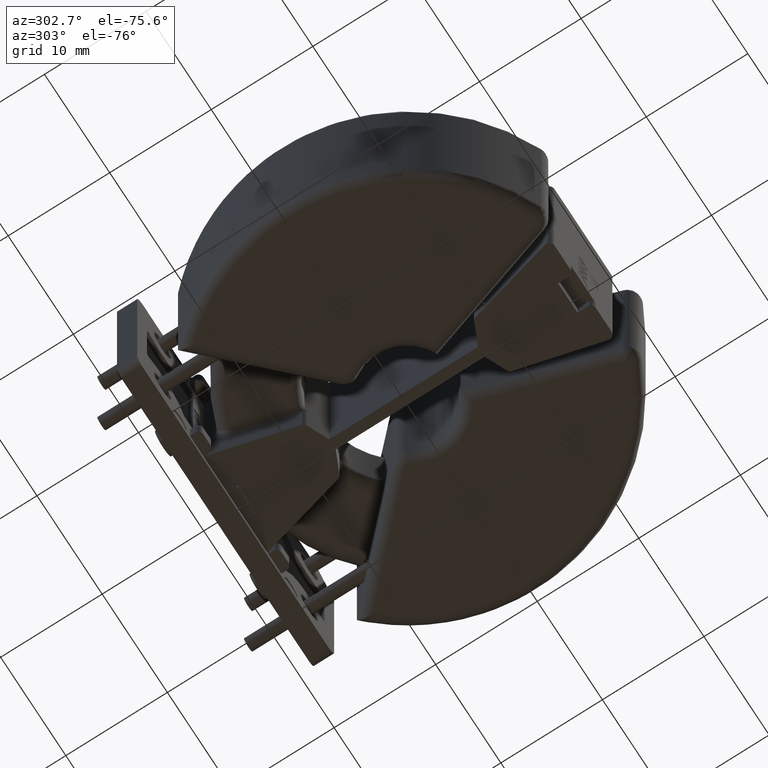
[diagram: clean part render]
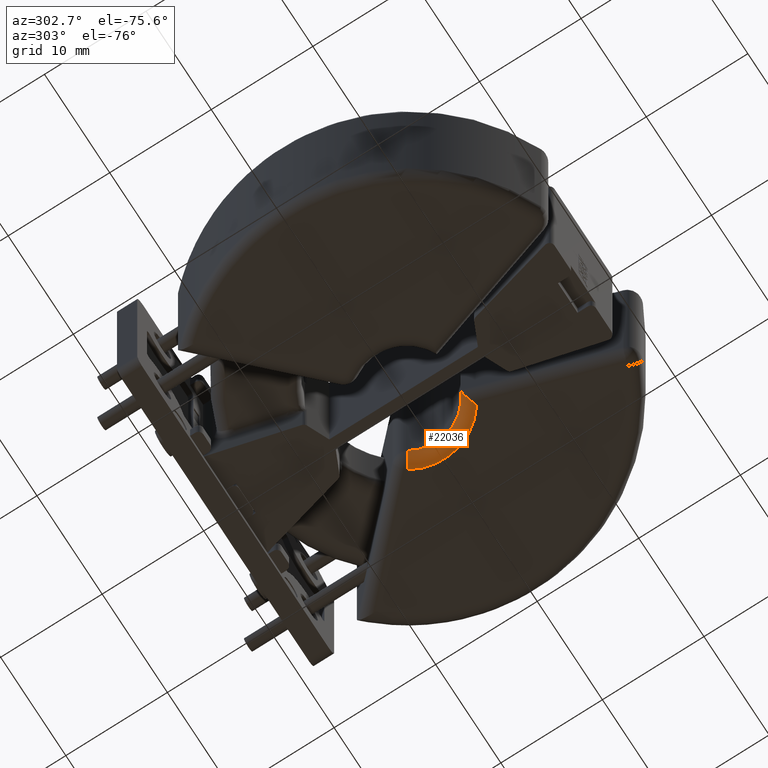
[diagram: same view with one face highlighted and labeled with its STEP entity id]
A machine part, auxiliary view. The second image highlights one B-rep face of the part: STEP entity #22036.
In plain terms, the highlighted toroidal blend (fillet) surface has major radius 5.8 mm and minor (blend) radius 1.3 mm.
Its self-contained STEP definition (entity closure, byte-faithful):
#465 = ORIENTED_EDGE ( 'NONE', *, *, #17610, .F. ) ;
#1591 = CARTESIAN_POINT ( 'NONE',  ( 1.826306909887242647, -4.112736688738793056, -4.275000000000008349 ) ) ;
#1743 = CARTESIAN_POINT ( 'NONE',  ( 3.010516339354601723, -4.588121149716618774, -5.546389730177627264 ) ) ;
#1808 = EDGE_CURVE ( 'NONE', #18888, #19305, #17405, .T. ) ;
#1999 = CARTESIAN_POINT ( 'NONE',  ( 2.023382299663143868, -4.199878147416290730, -4.909567398809551619 ) ) ;
#2593 = ORIENTED_EDGE ( 'NONE', *, *, #5494, .F. ) ;
#2964 = AXIS2_PLACEMENT_3D ( 'NONE', #25417, #6483, #14897 ) ;
#3181 = ORIENTED_EDGE ( 'NONE', *, *, #1808, .F. ) ;
#4059 = CARTESIAN_POINT ( 'NONE',  ( 1.839774589975620600, -4.118834469148009880, -4.468960211141700611 ) ) ;
#5494 = EDGE_CURVE ( 'NONE', #24150, #18888, #6924, .T. ) ;
#5531 = AXIS2_PLACEMENT_3D ( 'NONE', #8751, #21690, #14793 ) ;
#6258 = CARTESIAN_POINT ( 'NONE',  ( 3.378992817792112024, -4.714064863502559710, -5.575000000000009059 ) ) ;
#6393 = DIRECTION ( 'NONE',  ( 6.442710090731450671E-17, -6.938893903907229610E-17, -1.000000000000000000 ) ) ;
#6483 = DIRECTION ( 'NONE',  ( 0.5306267177241010824, -0.8476056196353038974, 9.300119575697728164E-17 ) ) ;
#6666 = DIRECTION ( 'NONE',  ( -1.589399859959779411E-16, 1.000000000000000000, 0.000000000000000000 ) ) ;
#6924 = B_SPLINE_CURVE_WITH_KNOTS ( 'NONE', 3,
 ( #1591, #18820, #4059, #8341, #12466, #1999, #10004, #10407, #27249, #18423, #23109, #1743, #16729, #6258 ),
 .UNSPECIFIED., .F., .F.,
 ( 4, 2, 2, 2, 2, 2, 4 ),
 ( 0.000000000000000000, 0.0002900875031853619376, 0.0005801750063707238753, 0.0008702625095560858129, 0.001160350012741447751, 0.001740525019112172710, 0.002320700025482897669 ),
 .UNSPECIFIED. ) ;
#7667 = VERTEX_POINT ( 'NONE', #16614 ) ;
#8218 = DIRECTION ( 'NONE',  ( 6.442710090731450671E-17, -6.938893903907229610E-17, -1.000000000000000000 ) ) ;
#8331 = CARTESIAN_POINT ( 'NONE',  ( 5.755338050071178045E-16, -6.522560269672794675E-16, -4.275000000000008349 ) ) ;
#8341 = CARTESIAN_POINT ( 'NONE',  ( 1.891241055745065403, -4.141852891741653053, -4.655180649708064777 ) ) ;
#8751 = CARTESIAN_POINT ( 'NONE',  ( 6.592890361866259582E-16, -7.424616477180735350E-16, -5.575000000000007283 ) ) ;
#10004 = CARTESIAN_POINT ( 'NONE',  ( 2.080321797497384662, -4.224428038668369467, -4.986645832057893024 ) ) ;
#10407 = CARTESIAN_POINT ( 'NONE',  ( 2.205569011786319145, -4.277265408100745070, -5.124561467856246999 ) ) ;
#11847 = CARTESIAN_POINT ( 'NONE',  ( 3.378992817792112024, -4.714064863502559710, -5.575000000000009059 ) ) ;
#12466 = CARTESIAN_POINT ( 'NONE',  ( 1.929343081340045174, -4.158802157255452769, -4.744725414298123667 ) ) ;
#13693 = CARTESIAN_POINT ( 'NONE',  ( 4.916112593884772508, 3.077634962799781437, -5.575000000000007283 ) ) ;
#14367 = CIRCLE ( 'NONE', #18324, 4.500000000000002665 ) ;
#14793 = DIRECTION ( 'NONE',  ( -1.047118405696103124E-15, 1.000000000000000000, 0.000000000000000000 ) ) ;
#14897 = DIRECTION ( 'NONE',  ( -0.8476056196353037864, -0.5306267177241009714, -6.672013369141568175E-16 ) ) ;
#16614 = CARTESIAN_POINT ( 'NONE',  ( 3.814225288358868760, 2.387820229758454094, -4.275000000000008349 ) ) ;
#16729 = CARTESIAN_POINT ( 'NONE',  ( 3.195535191542019149, -4.652878533505972136, -5.575000000000008171 ) ) ;
#17405 = CIRCLE ( 'NONE', #5531, 5.800000000000002487 ) ;
#17610 = EDGE_CURVE ( 'NONE', #7667, #24150, #14367, .T. ) ;
#18324 = AXIS2_PLACEMENT_3D ( 'NONE', #8331, #6393, #6666 ) ;
#18377 = CIRCLE ( 'NONE', #2964, 1.299999999999999600 ) ;
#18423 = CARTESIAN_POINT ( 'NONE',  ( 2.496943128732835415, -4.395829875757658378, -5.352847962180649510 ) ) ;
#18820 = CARTESIAN_POINT ( 'NONE',  ( 1.826306909887243091, -4.112736688738795721, -4.373355517269089887 ) ) ;
#18888 = VERTEX_POINT ( 'NONE', #11847 ) ;
#19155 = EDGE_LOOP ( 'NONE', ( #24067, #3181, #2593, #465 ) ) ;
#19305 = VERTEX_POINT ( 'NONE', #13693 ) ;
#20252 = DIRECTION ( 'NONE',  ( -1.589399859959779658E-16, 1.000000000000000000, -6.938893903907230843E-17 ) ) ;
#21604 = EDGE_CURVE ( 'NONE', #7667, #19305, #18377, .T. ) ;
#21690 = DIRECTION ( 'NONE',  ( -6.442710090731450671E-17, 6.938893903907229610E-17, 1.000000000000000000 ) ) ;
#22036 = ADVANCED_FACE ( 'NONE', ( #22570 ), #23836, .T. ) ;
#22570 = FACE_OUTER_BOUND ( 'NONE', #19155, .T. ) ;
#23109 = CARTESIAN_POINT ( 'NONE',  ( 2.661536155873096110, -4.459664661330799973, -5.434907055148677557 ) ) ;
#23402 = AXIS2_PLACEMENT_3D ( 'NONE', #27125, #8218, #20252 ) ;
#23836 = TOROIDAL_SURFACE ( 'NONE', #23402, 5.800000000000002487, 1.300000000000000044 ) ;
#24067 = ORIENTED_EDGE ( 'NONE', *, *, #21604, .T. ) ;
#24150 = VERTEX_POINT ( 'NONE', #25178 ) ;
#25178 = CARTESIAN_POINT ( 'NONE',  ( 1.826306909887242647, -4.112736688738793056, -4.275000000000008349 ) ) ;
#25417 = CARTESIAN_POINT ( 'NONE',  ( 4.916112593884771620, 3.077634962799782770, -4.275000000000006573 ) ) ;
#27125 = CARTESIAN_POINT ( 'NONE',  ( 5.755338050071178045E-16, -6.522560269672794675E-16, -4.275000000000008349 ) ) ;
#27249 = CARTESIAN_POINT ( 'NONE',  ( 2.274308654579132227, -4.305750111681241776, -5.186347310700684332 ) ) ;